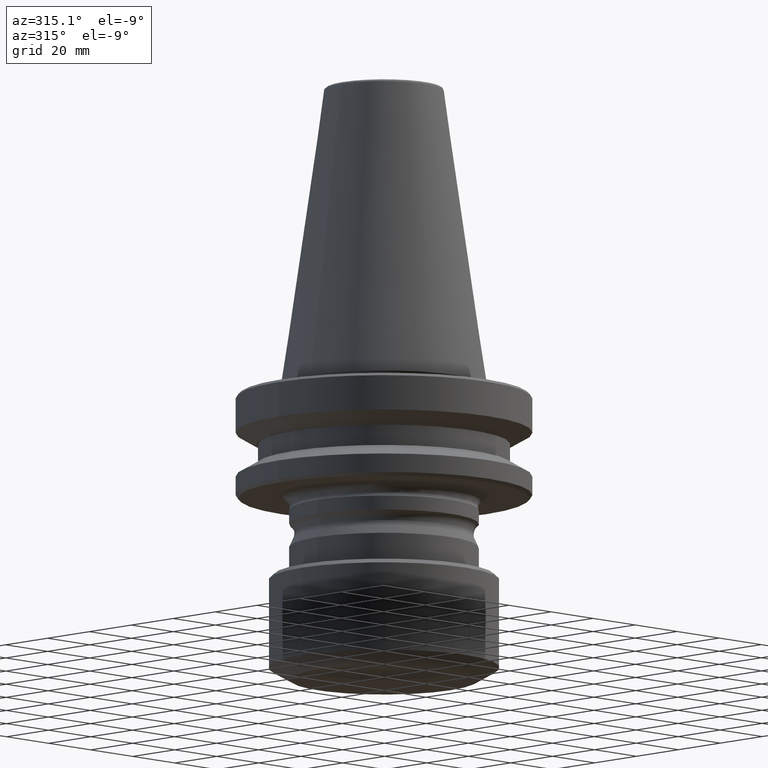
[diagram: clean part render]
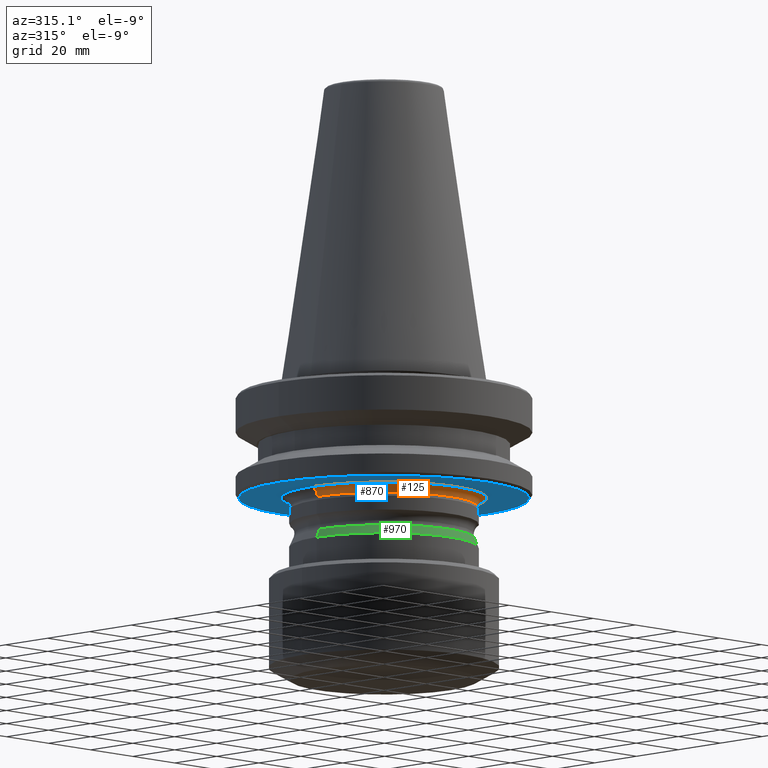
[diagram: same view with three faces highlighted in distinct colors, each labeled with its STEP entity id]
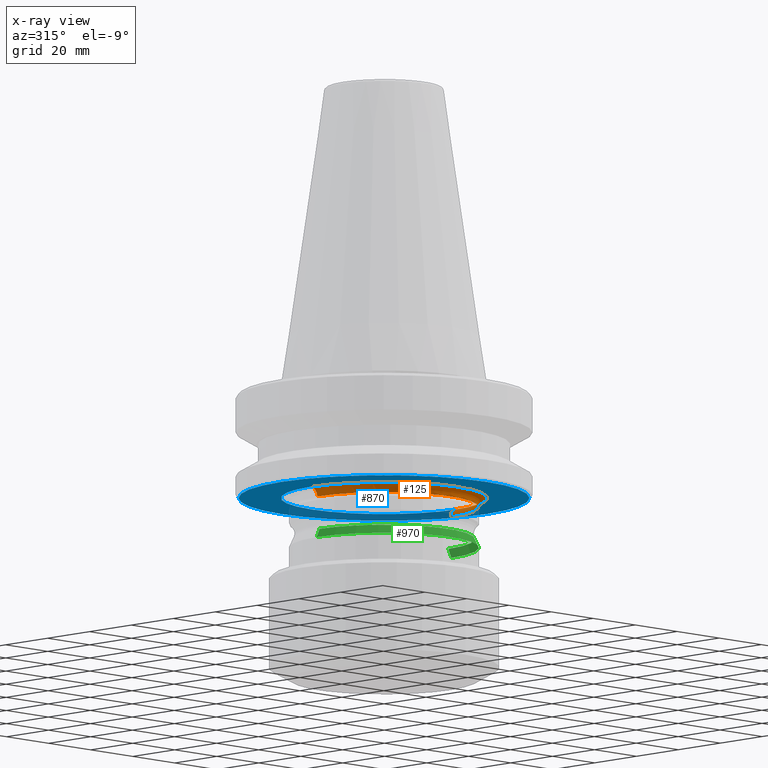
[diagram: x-ray of the same camera — body ghosted, the three highlighted faces saturated]
A machine part, auxiliary view with three faces highlighted in distinct colors.
The next image is the same camera in x-ray (body ghosted, the three faces saturated) — at least one of them is partly hidden behind the body in this view.
Their STEP definitions:

[orange] entity #125 — the highlighted toroidal blend (fillet) surface has major radius 34.75 mm and minor (blend) radius 3 mm.
#61 = DIRECTION ( 'NONE',  ( 1.224646799147353200E-016, 1.000000000000000000, 0.0000000000000000000 ) ) ;
#125 = ADVANCED_FACE ( 'NONE', ( #1386 ), #227, .F. ) ;
#138 = AXIS2_PLACEMENT_3D ( 'NONE', #274, #629, #552 ) ;
#168 = EDGE_LOOP ( 'NONE', ( #199, #527, #800, #216 ) ) ;
#182 = EDGE_CURVE ( 'NONE', #475, #669, #720, .T. ) ;
#183 = CARTESIAN_POINT ( 'NONE',  ( -34.74999999999995000, 4.255647627037046400E-015, -41.00000000000170500 ) ) ;
#194 = EDGE_CURVE ( 'NONE', #804, #475, #1243, .T. ) ;
#199 = ORIENTED_EDGE ( 'NONE', *, *, #494, .T. ) ;
#214 = CIRCLE ( 'NONE', #996, 2.999999999999877900 ) ;
#216 = ORIENTED_EDGE ( 'NONE', *, *, #194, .F. ) ;
#227 = TOROIDAL_SURFACE ( 'NONE', #1179, 34.74999999999995000, 2.999999999999877400 ) ;
#274 = CARTESIAN_POINT ( 'NONE',  ( 34.74999999999995000, 0.0000000000000000000, -41.00000000000170500 ) ) ;
#304 = DIRECTION ( 'NONE',  ( 1.000000000000000000, 0.0000000000000000000, 0.0000000000000000000 ) ) ;
#331 = EDGE_CURVE ( 'NONE', #1361, #669, #729, .T. ) ;
#345 = CARTESIAN_POINT ( 'NONE',  ( 0.0000000000000000000, 0.0000000000000000000, -41.00000000000170500 ) ) ;
#405 = CARTESIAN_POINT ( 'NONE',  ( 34.74999999999995000, 0.0000000000000000000, -38.00000000000183300 ) ) ;
#475 = VERTEX_POINT ( 'NONE', #405 ) ;
#494 = EDGE_CURVE ( 'NONE', #804, #1361, #214, .T. ) ;
#519 = CARTESIAN_POINT ( 'NONE',  ( 0.0000000000000000000, 0.0000000000000000000, -38.00000000000184000 ) ) ;
#527 = ORIENTED_EDGE ( 'NONE', *, *, #331, .T. ) ;
#552 = DIRECTION ( 'NONE',  ( 0.0000000000000000000, 0.0000000000000000000, -1.000000000000000000 ) ) ;
#567 = DIRECTION ( 'NONE',  ( -0.0000000000000000000, -0.0000000000000000000, 1.000000000000000000 ) ) ;
#620 = DIRECTION ( 'NONE',  ( -0.0000000000000000000, -0.0000000000000000000, 1.000000000000000000 ) ) ;
#629 = DIRECTION ( 'NONE',  ( 0.0000000000000000000, -1.000000000000000000, 0.0000000000000000000 ) ) ;
#654 = AXIS2_PLACEMENT_3D ( 'NONE', #519, #620, #304 ) ;
#669 = VERTEX_POINT ( 'NONE', #951 ) ;
#679 = DIRECTION ( 'NONE',  ( -0.0000000000000000000, -0.0000000000000000000, 1.000000000000000000 ) ) ;
#680 = AXIS2_PLACEMENT_3D ( 'NONE', #849, #679, #1123 ) ;
#720 = CIRCLE ( 'NONE', #138, 2.999999999999877900 ) ;
#729 = CIRCLE ( 'NONE', #680, 31.75000000000007100 ) ;
#786 = DIRECTION ( 'NONE',  ( 1.000000000000000000, 0.0000000000000000000, 0.0000000000000000000 ) ) ;
#800 = ORIENTED_EDGE ( 'NONE', *, *, #182, .F. ) ;
#804 = VERTEX_POINT ( 'NONE', #1258 ) ;
#849 = CARTESIAN_POINT ( 'NONE',  ( 0.0000000000000000000, 0.0000000000000000000, -41.00000000000170500 ) ) ;
#951 = CARTESIAN_POINT ( 'NONE',  ( 31.75000000000007100, 0.0000000000000000000, -41.00000000000170500 ) ) ;
#996 = AXIS2_PLACEMENT_3D ( 'NONE', #183, #61, #1211 ) ;
#1123 = DIRECTION ( 'NONE',  ( 1.000000000000000000, 0.0000000000000000000, 0.0000000000000000000 ) ) ;
#1179 = AXIS2_PLACEMENT_3D ( 'NONE', #345, #567, #786 ) ;
#1211 = DIRECTION ( 'NONE',  ( -1.000000000000000000, 1.224646799147354200E-016, 0.0000000000000000000 ) ) ;
#1243 = CIRCLE ( 'NONE', #654, 34.74999999999995000 ) ;
#1258 = CARTESIAN_POINT ( 'NONE',  ( -34.74999999999995000, 4.255647627037046400E-015, -38.00000000000183300 ) ) ;
#1361 = VERTEX_POINT ( 'NONE', #1364 ) ;
#1364 = CARTESIAN_POINT ( 'NONE',  ( -31.75000000000007100, 3.888253587292855200E-015, -41.00000000000170500 ) ) ;
#1386 = FACE_OUTER_BOUND ( 'NONE', #168, .T. ) ;

[blue] entity #870 — the highlighted planar face has unit normal (0, -0, 1).
#25 = ORIENTED_EDGE ( 'NONE', *, *, #410, .T. ) ;
#33 = DIRECTION ( 'NONE',  ( -0.0000000000000000000, -0.0000000000000000000, 1.000000000000000000 ) ) ;
#56 = DIRECTION ( 'NONE',  ( 0.0000000000000000000, -0.0000000000000000000, 1.000000000000000000 ) ) ;
#60 = CARTESIAN_POINT ( 'NONE',  ( 0.0000000000000000000, 0.0000000000000000000, -38.00000000000184000 ) ) ;
#107 = VERTEX_POINT ( 'NONE', #281 ) ;
#121 = EDGE_CURVE ( 'NONE', #107, #839, #1314, .T. ) ;
#169 = CIRCLE ( 'NONE', #605, 49.00000000000004300 ) ;
#194 = EDGE_CURVE ( 'NONE', #804, #475, #1243, .T. ) ;
#245 = ORIENTED_EDGE ( 'NONE', *, *, #194, .T. ) ;
#281 = CARTESIAN_POINT ( 'NONE',  ( 49.00000000000004300, 0.0000000000000000000, -38.00000000000181200 ) ) ;
#298 = DIRECTION ( 'NONE',  ( -0.0000000000000000000, -0.0000000000000000000, 1.000000000000000000 ) ) ;
#304 = DIRECTION ( 'NONE',  ( 1.000000000000000000, 0.0000000000000000000, 0.0000000000000000000 ) ) ;
#359 = CIRCLE ( 'NONE', #501, 34.74999999999995000 ) ;
#360 = CARTESIAN_POINT ( 'NONE',  ( 0.0000000000000000000, 0.0000000000000000000, -38.00000000000181200 ) ) ;
#400 = DIRECTION ( 'NONE',  ( 1.000000000000000000, 0.0000000000000000000, 0.0000000000000000000 ) ) ;
#405 = CARTESIAN_POINT ( 'NONE',  ( 34.74999999999995000, 0.0000000000000000000, -38.00000000000183300 ) ) ;
#410 = EDGE_CURVE ( 'NONE', #475, #804, #359, .T. ) ;
#445 = DIRECTION ( 'NONE',  ( 1.000000000000000000, 0.0000000000000000000, 0.0000000000000000000 ) ) ;
#450 = ORIENTED_EDGE ( 'NONE', *, *, #1026, .F. ) ;
#462 = AXIS2_PLACEMENT_3D ( 'NONE', #1334, #56, #587 ) ;
#475 = VERTEX_POINT ( 'NONE', #405 ) ;
#501 = AXIS2_PLACEMENT_3D ( 'NONE', #60, #33, #445 ) ;
#519 = CARTESIAN_POINT ( 'NONE',  ( 0.0000000000000000000, 0.0000000000000000000, -38.00000000000184000 ) ) ;
#584 = FACE_BOUND ( 'NONE', #1030, .T. ) ;
#587 = DIRECTION ( 'NONE',  ( 1.000000000000000000, 0.0000000000000000000, 0.0000000000000000000 ) ) ;
#605 = AXIS2_PLACEMENT_3D ( 'NONE', #360, #298, #982 ) ;
#606 = CARTESIAN_POINT ( 'NONE',  ( -49.00000000000004300, 6.062001655779410300E-015, -38.00000000000181200 ) ) ;
#620 = DIRECTION ( 'NONE',  ( -0.0000000000000000000, -0.0000000000000000000, 1.000000000000000000 ) ) ;
#654 = AXIS2_PLACEMENT_3D ( 'NONE', #519, #620, #304 ) ;
#790 = EDGE_LOOP ( 'NONE', ( #938, #450 ) ) ;
#804 = VERTEX_POINT ( 'NONE', #1258 ) ;
#807 = AXIS2_PLACEMENT_3D ( 'NONE', #1156, #1382, #400 ) ;
#839 = VERTEX_POINT ( 'NONE', #606 ) ;
#870 = ADVANCED_FACE ( 'NONE', ( #874, #584 ), #1330, .F. ) ;
#874 = FACE_OUTER_BOUND ( 'NONE', #790, .T. ) ;
#938 = ORIENTED_EDGE ( 'NONE', *, *, #121, .F. ) ;
#982 = DIRECTION ( 'NONE',  ( 1.000000000000000000, 0.0000000000000000000, 0.0000000000000000000 ) ) ;
#1026 = EDGE_CURVE ( 'NONE', #839, #107, #169, .T. ) ;
#1030 = EDGE_LOOP ( 'NONE', ( #25, #245 ) ) ;
#1156 = CARTESIAN_POINT ( 'NONE',  ( 0.0000000000000000000, 0.0000000000000000000, -38.00000000000181200 ) ) ;
#1243 = CIRCLE ( 'NONE', #654, 34.74999999999995000 ) ;
#1258 = CARTESIAN_POINT ( 'NONE',  ( -34.74999999999995000, 4.255647627037046400E-015, -38.00000000000183300 ) ) ;
#1314 = CIRCLE ( 'NONE', #807, 49.00000000000004300 ) ;
#1330 = PLANE ( 'NONE',  #462 ) ;
#1334 = CARTESIAN_POINT ( 'NONE',  ( 0.0000000000000000000, 49.00000000000004300, -38.00000000000181900 ) ) ;
#1382 = DIRECTION ( 'NONE',  ( -0.0000000000000000000, -0.0000000000000000000, 1.000000000000000000 ) ) ;

[green] entity #970 — the highlighted conical surface has half-angle 25 deg.
#34 = LINE ( 'NONE', #960, #576 ) ;
#58 = EDGE_CURVE ( 'NONE', #1215, #303, #34, .T. ) ;
#74 = VERTEX_POINT ( 'NONE', #784 ) ;
#77 = CARTESIAN_POINT ( 'NONE',  ( 30.62476885185327900, 3.834661136088264100E-015, -51.95080728549950100 ) ) ;
#101 = DIRECTION ( 'NONE',  ( 0.0000000000000000000, 0.0000000000000000000, -1.000000000000000000 ) ) ;
#206 = CARTESIAN_POINT ( 'NONE',  ( 32.00000000000024900, 3.918869757271561000E-015, -54.90000000000128500 ) ) ;
#213 = VERTEX_POINT ( 'NONE', #77 ) ;
#303 = VERTEX_POINT ( 'NONE', #854 ) ;
#314 = EDGE_CURVE ( 'NONE', #303, #74, #493, .T. ) ;
#338 = CIRCLE ( 'NONE', #547, 30.62476885185327900 ) ;
#472 = CONICAL_SURFACE ( 'NONE', #1025, 32.00000000000024900, 0.4363323129985441900 ) ;
#493 = CIRCLE ( 'NONE', #914, 32.00000000000024900 ) ;
#547 = AXIS2_PLACEMENT_3D ( 'NONE', #596, #1192, #607 ) ;
#576 = VECTOR ( 'NONE', #1375, 1000.000000000000000 ) ;
#596 = CARTESIAN_POINT ( 'NONE',  ( 0.0000000000000000000, 0.0000000000000000000, -51.95080728549950100 ) ) ;
#607 = DIRECTION ( 'NONE',  ( 1.000000000000000000, 0.0000000000000000000, 0.0000000000000000000 ) ) ;
#641 = DIRECTION ( 'NONE',  ( -0.0000000000000000000, -0.0000000000000000000, 1.000000000000000000 ) ) ;
#667 = VECTOR ( 'NONE', #844, 1000.000000000000000 ) ;
#685 = EDGE_CURVE ( 'NONE', #1215, #213, #338, .T. ) ;
#784 = CARTESIAN_POINT ( 'NONE',  ( 32.00000000000024900, 0.0000000000000000000, -54.90000000000128500 ) ) ;
#823 = CARTESIAN_POINT ( 'NONE',  ( 0.0000000000000000000, 0.0000000000000000000, -54.90000000000128500 ) ) ;
#838 = FACE_OUTER_BOUND ( 'NONE', #1320, .T. ) ;
#844 = DIRECTION ( 'NONE',  ( 0.4226182617406648000, 5.175581015019234800E-017, -0.9063077870366661500 ) ) ;
#854 = CARTESIAN_POINT ( 'NONE',  ( -32.00000000000024900, 3.918869757271561000E-015, -54.90000000000128500 ) ) ;
#898 = ORIENTED_EDGE ( 'NONE', *, *, #1292, .F. ) ;
#914 = AXIS2_PLACEMENT_3D ( 'NONE', #823, #641, #1113 ) ;
#939 = DIRECTION ( 'NONE',  ( -1.000000000000000000, 0.0000000000000000000, 0.0000000000000000000 ) ) ;
#950 = LINE ( 'NONE', #206, #667 ) ;
#960 = CARTESIAN_POINT ( 'NONE',  ( -32.00000000000024900, 0.0000000000000000000, -54.90000000000128500 ) ) ;
#970 = ADVANCED_FACE ( 'NONE', ( #838 ), #472, .T. ) ;
#1021 = ORIENTED_EDGE ( 'NONE', *, *, #58, .T. ) ;
#1023 = ORIENTED_EDGE ( 'NONE', *, *, #685, .F. ) ;
#1025 = AXIS2_PLACEMENT_3D ( 'NONE', #1038, #101, #939 ) ;
#1038 = CARTESIAN_POINT ( 'NONE',  ( 0.0000000000000000000, 0.0000000000000000000, -54.90000000000128500 ) ) ;
#1048 = ORIENTED_EDGE ( 'NONE', *, *, #314, .T. ) ;
#1113 = DIRECTION ( 'NONE',  ( 1.000000000000000000, 0.0000000000000000000, 0.0000000000000000000 ) ) ;
#1192 = DIRECTION ( 'NONE',  ( -0.0000000000000000000, -0.0000000000000000000, 1.000000000000000000 ) ) ;
#1215 = VERTEX_POINT ( 'NONE', #1270 ) ;
#1270 = CARTESIAN_POINT ( 'NONE',  ( -30.62476885185327900, 0.0000000000000000000, -51.95080728549950100 ) ) ;
#1292 = EDGE_CURVE ( 'NONE', #213, #74, #950, .T. ) ;
#1320 = EDGE_LOOP ( 'NONE', ( #898, #1023, #1021, #1048 ) ) ;
#1375 = DIRECTION ( 'NONE',  ( -0.4226182617406648000, 0.0000000000000000000, -0.9063077870366661500 ) ) ;